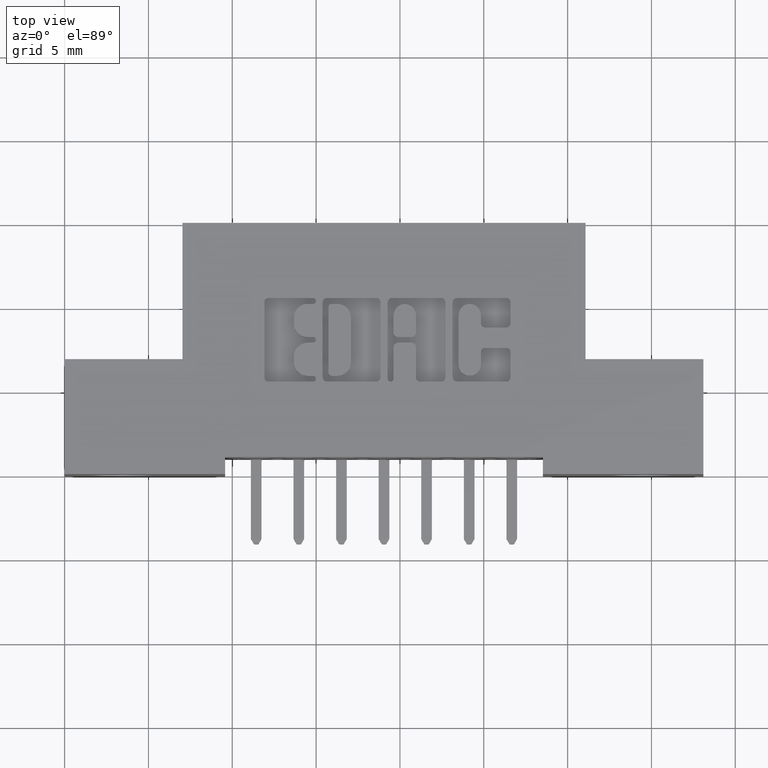
[diagram: clean part render]
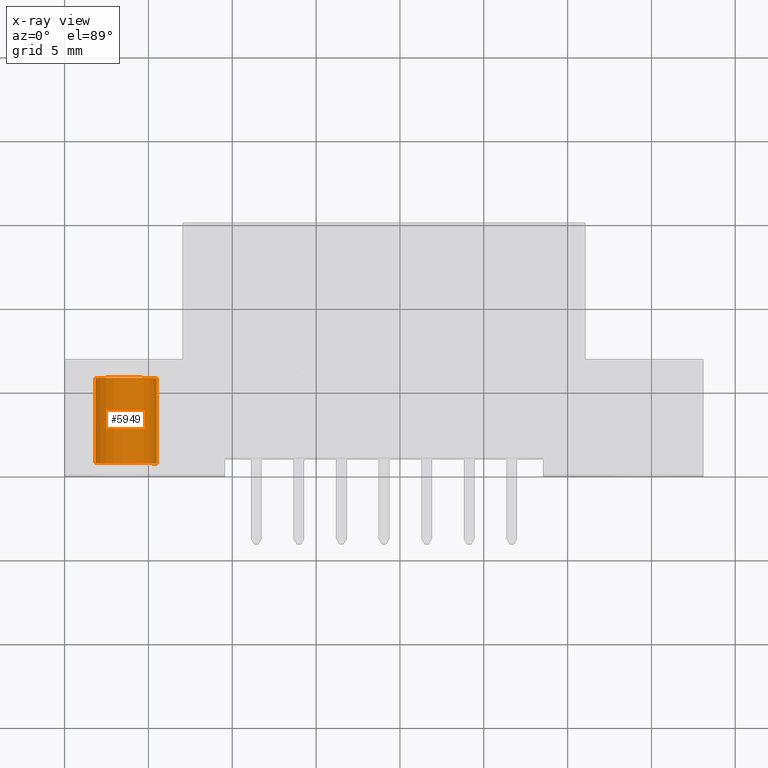
[diagram: x-ray — body ghosted, one internal face saturated and labeled with its STEP entity id]
A machine part, top view, then the same camera in x-ray: the body is ghosted and one INTERNAL B-rep face — a face not visible from any outside direction — is saturated and labeled: STEP entity #5949.
In plain terms, the highlighted cylindrical surface (edge-blend (fillet) strip) has radius 1.9685 mm, axis along (0, 1, 0).
Its self-contained STEP definition (entity closure, byte-faithful):
#17 = ORIENTED_EDGE ( 'NONE', *, *, #715, .T. ) ;
#73 = DIRECTION ( 'NONE',  ( -8.952246189382937400E-016, 1.000000000000000000, -6.073435839552846500E-017 ) ) ;
#242 = AXIS2_PLACEMENT_3D ( 'NONE', #9657, #5207, #493 ) ;
#493 = DIRECTION ( 'NONE',  ( -1.110223024625155600E-016, 0.0000000000000000000, 1.000000000000000000 ) ) ;
#526 = ORIENTED_EDGE ( 'NONE', *, *, #9071, .F. ) ;
#632 = VECTOR ( 'NONE', #7617, 39.37007874015748100 ) ;
#715 = EDGE_CURVE ( 'NONE', #1138, #6292, #8914, .T. ) ;
#789 = CARTESIAN_POINT ( 'NONE',  ( 3.713114897011006900E-016, 0.2400000000000000500, -0.07749999999999999900 ) ) ;
#880 = LINE ( 'NONE', #1444, #632 ) ;
#999 = ORIENTED_EDGE ( 'NONE', *, *, #6167, .F. ) ;
#1138 = VERTEX_POINT ( 'NONE', #6254 ) ;
#1444 = CARTESIAN_POINT ( 'NONE',  ( 2.817890278072713000E-016, 0.2400000000000000500, -0.07749999999999999900 ) ) ;
#1829 = CIRCLE ( 'NONE', #242, 0.07749999999999999900 ) ;
#2202 = AXIS2_PLACEMENT_3D ( 'NONE', #7245, #3419, #7987 ) ;
#2574 = DIRECTION ( 'NONE',  ( -1.110223024625156500E-016, -1.101551610348493300E-016, 1.000000000000000000 ) ) ;
#3419 = DIRECTION ( 'NONE',  ( 8.952246189382937400E-016, -1.000000000000000000, 6.073435839552846500E-017 ) ) ;
#4104 = VERTEX_POINT ( 'NONE', #7883 ) ;
#4713 = CYLINDRICAL_SURFACE ( 'NONE', #2202, 0.07749999999999999900 ) ;
#4934 = CARTESIAN_POINT ( 'NONE',  ( 0.0000000000000000000, 0.03999999999999998000, 0.0000000000000000000 ) ) ;
#5207 = DIRECTION ( 'NONE',  ( -8.952246189382937400E-016, 1.000000000000000000, -6.073435839552846500E-017 ) ) ;
#5376 = CARTESIAN_POINT ( 'NONE',  ( 2.740715836189733100E-016, 0.2400000000000000500, 0.07749999999999999900 ) ) ;
#5379 = VECTOR ( 'NONE', #6147, 39.37007874015748100 ) ;
#5949 = ADVANCED_FACE ( 'NONE', ( #8719 ), #4713, .T. ) ;
#6147 = DIRECTION ( 'NONE',  ( 8.952246189382937400E-016, -1.000000000000000000, 6.073435839552846500E-017 ) ) ;
#6167 = EDGE_CURVE ( 'NONE', #8606, #6292, #880, .T. ) ;
#6254 = CARTESIAN_POINT ( 'NONE',  ( 3.635940455128027000E-016, 0.03999999999999999400, 0.07749999999999999900 ) ) ;
#6292 = VERTEX_POINT ( 'NONE', #7052 ) ;
#7052 = CARTESIAN_POINT ( 'NONE',  ( 3.713114897011006900E-016, 0.03999999999999997300, -0.07749999999999999900 ) ) ;
#7245 = CARTESIAN_POINT ( 'NONE',  ( 2.731847993664263200E-016, 0.2400000000000000500, 0.0000000000000000000 ) ) ;
#7395 = LINE ( 'NONE', #5376, #5379 ) ;
#7617 = DIRECTION ( 'NONE',  ( 8.952246189382937400E-016, -1.000000000000000000, 6.073435839552846500E-017 ) ) ;
#7883 = CARTESIAN_POINT ( 'NONE',  ( 3.635940455128027000E-016, 0.2400000000000000500, 0.07749999999999999900 ) ) ;
#7987 = DIRECTION ( 'NONE',  ( 1.110223024625155600E-016, 0.0000000000000000000, -1.000000000000000000 ) ) ;
#8534 = EDGE_CURVE ( 'NONE', #4104, #1138, #7395, .T. ) ;
#8606 = VERTEX_POINT ( 'NONE', #789 ) ;
#8679 = EDGE_LOOP ( 'NONE', ( #526, #9601, #17, #999 ) ) ;
#8719 = FACE_OUTER_BOUND ( 'NONE', #8679, .T. ) ;
#8914 = CIRCLE ( 'NONE', #9753, 0.07749999999999999900 ) ;
#9071 = EDGE_CURVE ( 'NONE', #4104, #8606, #1829, .T. ) ;
#9601 = ORIENTED_EDGE ( 'NONE', *, *, #8534, .T. ) ;
#9657 = CARTESIAN_POINT ( 'NONE',  ( 2.731847993664263200E-016, 0.2400000000000000500, 0.0000000000000000000 ) ) ;
#9753 = AXIS2_PLACEMENT_3D ( 'NONE', #4934, #73, #2574 ) ;